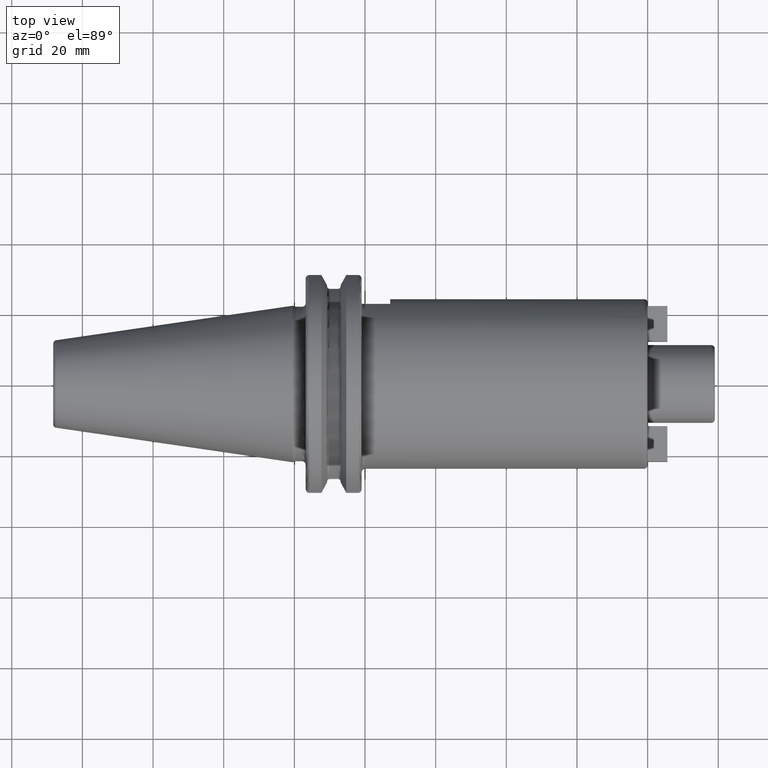
[diagram: clean part render]
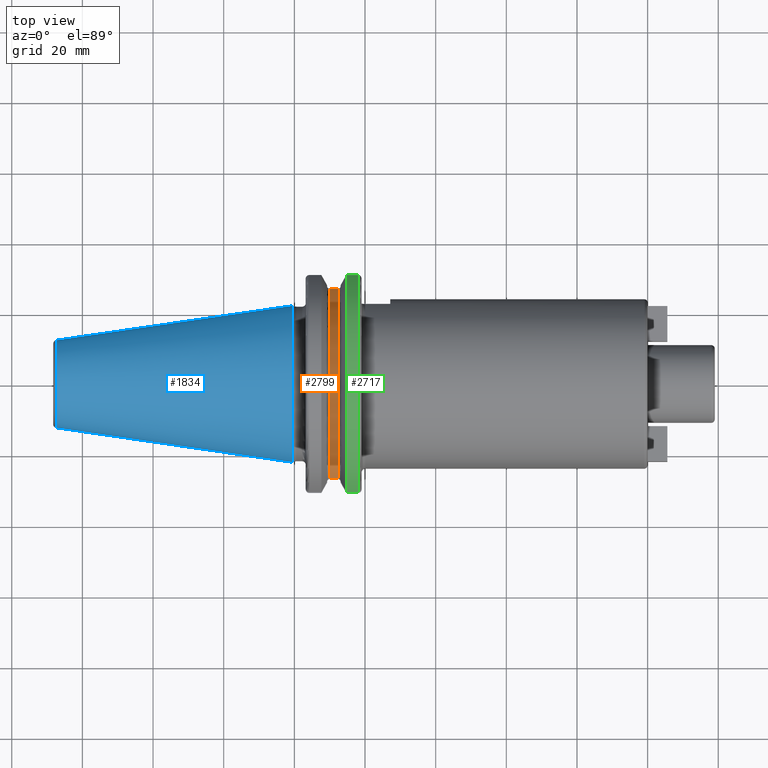
[diagram: same view with three faces highlighted in distinct colors, each labeled with its STEP entity id]
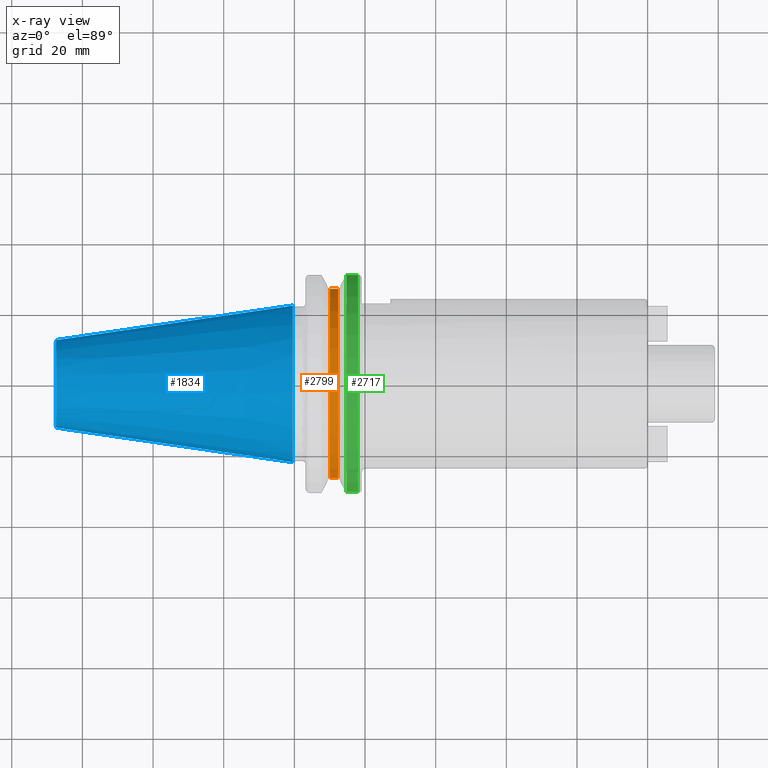
[diagram: x-ray of the same camera — body ghosted, the three highlighted faces saturated]
A machine part, top view with three faces highlighted in distinct colors.
The next image is the same camera in x-ray (body ghosted, the three faces saturated) — at least one of them is partly hidden behind the body in this view.
Their STEP definitions:

[orange] entity #2799 — the highlighted cylindrical surface (partial cylindrical patch) has radius 28 mm, axis along (1, 0, 0).
#779=CARTESIAN_POINT('',(1.00125E1,2.680279836137E1,8.1E0));
#799=CARTESIAN_POINT('',(1.00125E1,-2.680279836137E1,8.1E0));
#806=DIRECTION('',(1.E0,0.E0,0.E0));
#807=VECTOR('',#806,2.325E0);
#808=CARTESIAN_POINT('',(1.00125E1,2.680279836137E1,8.1E0));
#809=LINE('',#808,#807);
#810=DIRECTION('',(1.E0,0.E0,0.E0));
#811=VECTOR('',#810,2.325E0);
#812=CARTESIAN_POINT('',(1.00125E1,-2.680279836137E1,8.1E0));
#813=LINE('',#812,#811);
#814=CARTESIAN_POINT('',(1.00125E1,0.E0,0.E0));
#815=DIRECTION('',(1.E0,0.E0,0.E0));
#816=DIRECTION('',(0.E0,9.572427986202E-1,2.892857142857E-1));
#817=AXIS2_PLACEMENT_3D('',#814,#815,#816);
#841=CARTESIAN_POINT('',(1.23375E1,0.E0,0.E0));
#842=DIRECTION('',(1.E0,0.E0,0.E0));
#843=DIRECTION('',(0.E0,9.572427986202E-1,2.892857142857E-1));
#844=AXIS2_PLACEMENT_3D('',#841,#842,#843);
#1556=VERTEX_POINT('',#779);
#1557=VERTEX_POINT('',#799);
#1558=CARTESIAN_POINT('',(1.23375E1,2.680279836137E1,8.1E0));
#1559=VERTEX_POINT('',#1558);
#1560=CARTESIAN_POINT('',(1.23375E1,-2.680279836137E1,8.1E0));
#1561=VERTEX_POINT('',#1560);
#2787=CARTESIAN_POINT('',(7.293041127536E0,0.E0,0.E0));
#2788=DIRECTION('',(1.E0,0.E0,0.E0));
#2789=DIRECTION('',(0.E0,-1.E0,0.E0));
#2790=AXIS2_PLACEMENT_3D('',#2787,#2788,#2789);
#2791=CYLINDRICAL_SURFACE('',#2790,2.8E1);
#2792=ORIENTED_EDGE('',*,*,#2053,.T.);
#2794=ORIENTED_EDGE('',*,*,#2793,.T.);
#2795=ORIENTED_EDGE('',*,*,#2103,.F.);
#2796=ORIENTED_EDGE('',*,*,#2780,.F.);
#2797=EDGE_LOOP('',(#2792,#2794,#2795,#2796));
#2798=FACE_OUTER_BOUND('',#2797,.F.);
#2799=ADVANCED_FACE('',(#2798),#2791,.T.);
#818=CIRCLE('',#817,2.8E1);
#845=CIRCLE('',#844,2.8E1);
#2053=EDGE_CURVE('',#1556,#1559,#809,.T.);
#2103=EDGE_CURVE('',#1557,#1561,#813,.T.);
#2780=EDGE_CURVE('',#1556,#1557,#818,.T.);
#2793=EDGE_CURVE('',#1559,#1561,#845,.T.);

[blue] entity #1834 — the highlighted conical surface has half-angle 8.298 deg.
#37=CARTESIAN_POINT('',(-6.743710273571E1,0.E0,0.E0));
#38=DIRECTION('',(1.E0,0.E0,0.E0));
#39=DIRECTION('',(0.E0,1.E0,0.E0));
#40=AXIS2_PLACEMENT_3D('',#37,#38,#39);
#42=CARTESIAN_POINT('',(-4.896823332305E-1,0.E0,0.E0));
#43=DIRECTION('',(1.E0,0.E0,0.E0));
#44=DIRECTION('',(0.E0,1.E0,0.E0));
#45=AXIS2_PLACEMENT_3D('',#42,#43,#44);
#47=DIRECTION('',(-9.895312636440E-1,-1.443186691705E-1,0.E0));
#48=VECTOR('',#47,6.765568998391E1);
#49=CARTESIAN_POINT('',(-4.896823332305E-1,2.215358204157E1,0.E0));
#50=LINE('',#49,#48);
#51=DIRECTION('',(-9.895312636440E-1,1.443186691705E-1,0.E0));
#52=VECTOR('',#51,6.765568998391E1);
#53=CARTESIAN_POINT('',(-4.896823332305E-1,-2.215358204157E1,0.E0));
#54=LINE('',#53,#52);
#1460=CARTESIAN_POINT('',(-6.743710273571E1,1.238960290128E1,0.E0));
#1462=VERTEX_POINT('',#1460);
#1464=CARTESIAN_POINT('',(-6.743710273571E1,-1.238960290128E1,0.E0));
#1466=VERTEX_POINT('',#1464);
#1528=CARTESIAN_POINT('',(-4.896823332305E-1,2.215358204157E1,0.E0));
#1529=VERTEX_POINT('',#1528);
#1530=CARTESIAN_POINT('',(-4.896823332305E-1,-2.215358204157E1,0.E0));
#1531=VERTEX_POINT('',#1530);
#1820=CARTESIAN_POINT('',(-3.396339253447E1,0.E0,0.E0));
#1821=DIRECTION('',(1.E0,0.E0,0.E0));
#1822=DIRECTION('',(0.E0,-1.E0,0.E0));
#1823=AXIS2_PLACEMENT_3D('',#1820,#1821,#1822);
#1824=CONICAL_SURFACE('',#1823,1.727159247143E1,8.297826828206E0);
#1826=ORIENTED_EDGE('',*,*,#1825,.F.);
#1828=ORIENTED_EDGE('',*,*,#1827,.T.);
#1830=ORIENTED_EDGE('',*,*,#1829,.T.);
#1831=ORIENTED_EDGE('',*,*,#1813,.F.);
#1832=EDGE_LOOP('',(#1826,#1828,#1830,#1831));
#1833=FACE_OUTER_BOUND('',#1832,.F.);
#1834=ADVANCED_FACE('',(#1833),#1824,.T.);
#41=CIRCLE('',#40,1.238960290128E1);
#46=CIRCLE('',#45,2.215358204157E1);
#1813=EDGE_CURVE('',#1462,#1466,#41,.T.);
#1825=EDGE_CURVE('',#1529,#1462,#50,.T.);
#1827=EDGE_CURVE('',#1529,#1531,#46,.T.);
#1829=EDGE_CURVE('',#1531,#1466,#54,.T.);

[green] entity #2717 — the highlighted cylindrical surface (partial cylindrical patch) has radius 31.7625 mm, axis along (1, 0, 0).
#708=DIRECTION('',(1.E0,0.E0,0.E0));
#709=VECTOR('',#708,3.345946479578E0);
#710=CARTESIAN_POINT('',(1.470405352042E1,3.071231684927E1,8.1E0));
#711=LINE('',#710,#709);
#712=CARTESIAN_POINT('',(1.805E1,0.E0,0.E0));
#713=DIRECTION('',(1.E0,0.E0,0.E0));
#714=DIRECTION('',(0.E0,9.669363825036E-1,2.550177095632E-1));
#715=AXIS2_PLACEMENT_3D('',#712,#713,#714);
#717=DIRECTION('',(1.E0,0.E0,0.E0));
#718=VECTOR('',#717,3.345946479578E0);
#719=CARTESIAN_POINT('',(1.470405352042E1,-3.071231684927E1,8.1E0));
#720=LINE('',#719,#718);
#721=CARTESIAN_POINT('',(1.470405352042E1,0.E0,0.E0));
#722=DIRECTION('',(1.E0,0.E0,0.E0));
#723=DIRECTION('',(0.E0,9.669363825036E-1,2.550177095632E-1));
#724=AXIS2_PLACEMENT_3D('',#721,#722,#723);
#885=CARTESIAN_POINT('',(1.470405352042E1,3.071231684927E1,8.1E0));
#897=CARTESIAN_POINT('',(1.470405352042E1,-3.071231684927E1,8.1E0));
#1584=VERTEX_POINT('',#885);
#1585=VERTEX_POINT('',#897);
#1600=CARTESIAN_POINT('',(1.805E1,3.071231684927E1,8.1E0));
#1601=VERTEX_POINT('',#1600);
#1604=CARTESIAN_POINT('',(1.805E1,-3.071231684927E1,8.1E0));
#1605=VERTEX_POINT('',#1604);
#2705=CARTESIAN_POINT('',(-7.2615E1,0.E0,0.E0));
#2706=DIRECTION('',(1.E0,0.E0,0.E0));
#2707=DIRECTION('',(0.E0,-1.E0,0.E0));
#2708=AXIS2_PLACEMENT_3D('',#2705,#2706,#2707);
#2709=CYLINDRICAL_SURFACE('',#2708,3.17625E1);
#2710=ORIENTED_EDGE('',*,*,#2045,.T.);
#2711=ORIENTED_EDGE('',*,*,#2079,.T.);
#2712=ORIENTED_EDGE('',*,*,#2111,.F.);
#2714=ORIENTED_EDGE('',*,*,#2713,.F.);
#2715=EDGE_LOOP('',(#2710,#2711,#2712,#2714));
#2716=FACE_OUTER_BOUND('',#2715,.F.);
#2717=ADVANCED_FACE('',(#2716),#2709,.T.);
#716=CIRCLE('',#715,3.17625E1);
#725=CIRCLE('',#724,3.17625E1);
#2045=EDGE_CURVE('',#1584,#1601,#711,.T.);
#2079=EDGE_CURVE('',#1601,#1605,#716,.T.);
#2111=EDGE_CURVE('',#1585,#1605,#720,.T.);
#2713=EDGE_CURVE('',#1584,#1585,#725,.T.);